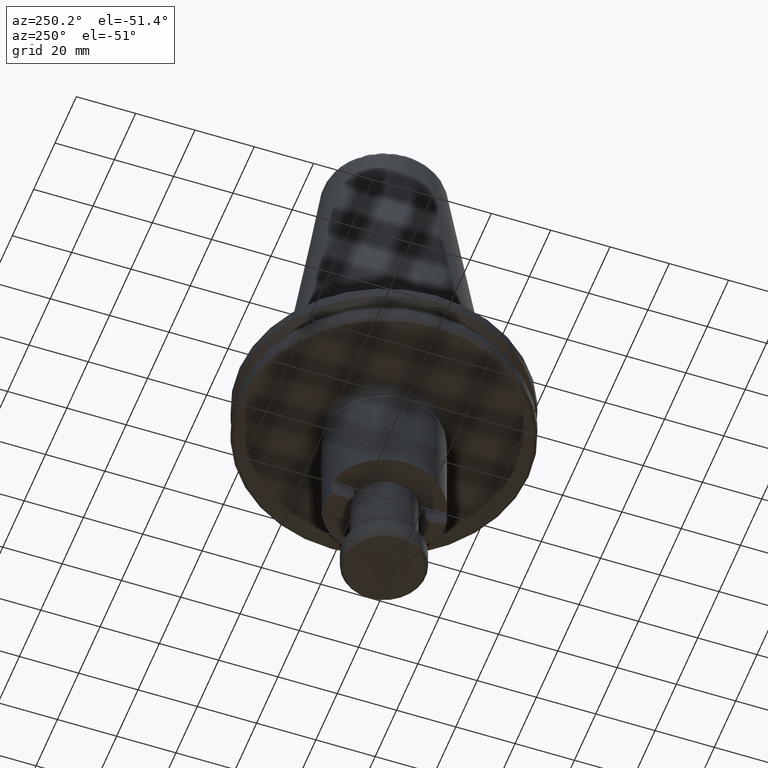
[diagram: clean part render]
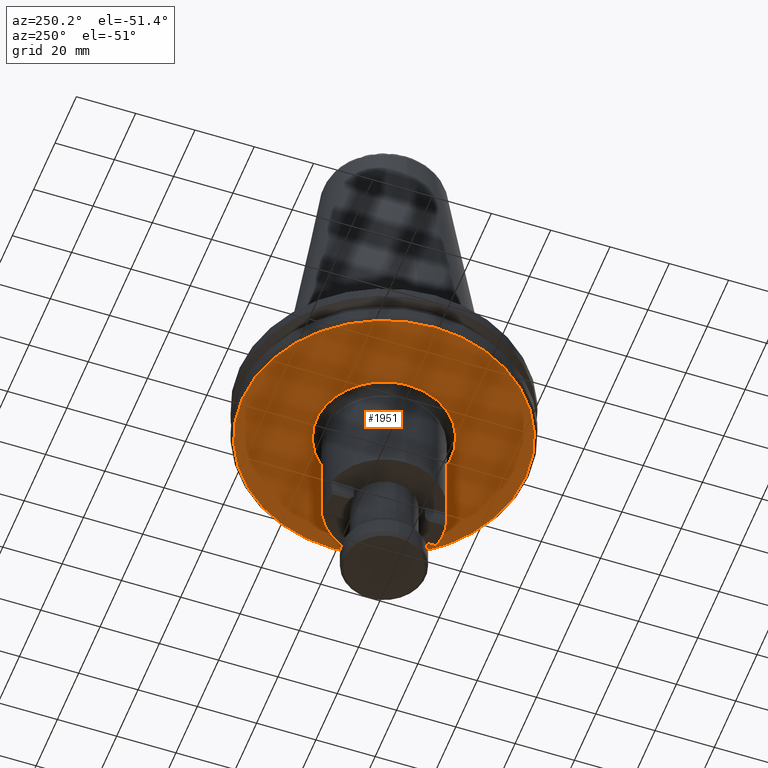
[diagram: same view with one face highlighted and labeled with its STEP entity id]
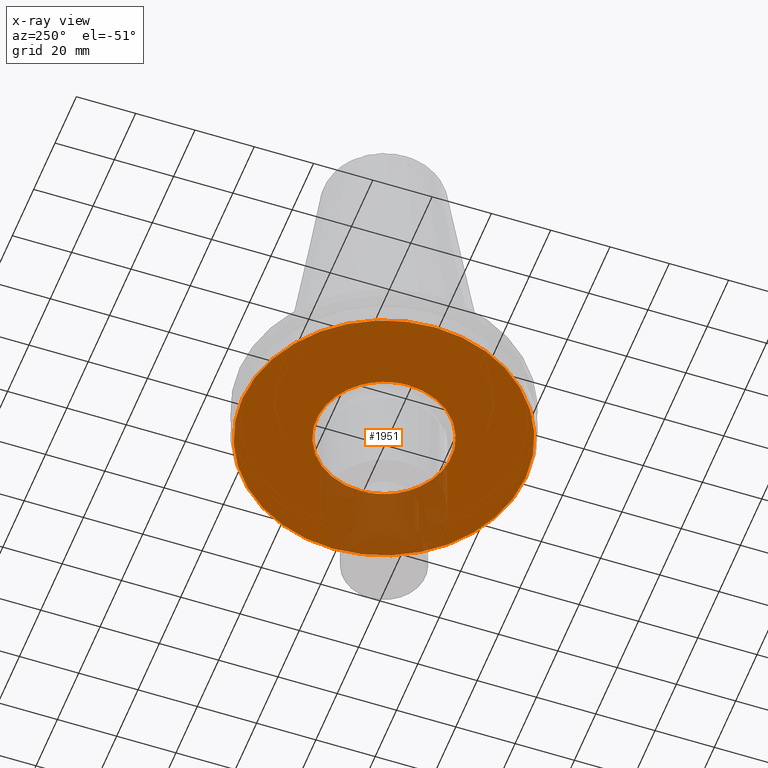
[diagram: x-ray of the same camera — body ghosted, the highlighted face saturated]
A machine part, auxiliary view. The second image highlights one B-rep face of the part: STEP entity #1951.
The next image is the same camera in x-ray: the body ghosted, the highlighted face saturated — about 18% of this face is hidden behind the body in this view.
In plain terms, the highlighted planar face has unit normal (0, 0, -1).
Its self-contained STEP definition (entity closure, byte-faithful):
#9 = CARTESIAN_POINT ( 'NONE',  ( 71.01151117430772800, 88.99750050050644700, 79.55142735088047300 ) ) ;
#18 = CARTESIAN_POINT ( 'NONE',  ( 70.82622866451565400, 89.25391066957321600, 79.55142735088050200 ) ) ;
#26 = CARTESIAN_POINT ( 'NONE',  ( 69.78205825713831700, 90.83301022154412900, 79.55142735088047300 ) ) ;
#39 = CARTESIAN_POINT ( 'NONE',  ( 112.2147490201321700, 103.6879148337303000, 79.55142735088047300 ) ) ;
#50 = CARTESIAN_POINT ( 'NONE',  ( 70.46531002369931700, 89.77253651307395900, 79.55142735088048800 ) ) ;
#65 = CARTESIAN_POINT ( 'NONE',  ( 68.94067503758111600, 92.44217391056717800, 79.55142735088045900 ) ) ;
#79 = CARTESIAN_POINT ( 'NONE',  ( 69.26256048306584000, 91.78179686560780200, 79.55142735088050200 ) ) ;
#81 = CARTESIAN_POINT ( 'NONE',  ( 100.2173177748814500, 122.5150694197451700, 79.55142735088048800 ) ) ;
#86 = CARTESIAN_POINT ( 'NONE',  ( 68.93677107463057000, 92.45019845855414100, 79.55142735088045900 ) ) ;
#87 = CARTESIAN_POINT ( 'NONE',  ( 100.2651320323611100, 122.4893477631587000, 79.55142735088047300 ) ) ;
#93 = CARTESIAN_POINT ( 'NONE',  ( 68.92793382342996700, 92.46838973952806400, 79.55142735088045900 ) ) ;
#105 = CARTESIAN_POINT ( 'NONE',  ( 73.92729103833346500, 85.71172258562654600, 79.55142735088048800 ) ) ;
#107 = CARTESIAN_POINT ( 'NONE',  ( 111.3380267558167800, 108.7725781759253900, 79.55142735088047300 ) ) ;
#115 = CARTESIAN_POINT ( 'NONE',  ( 68.91469674215569800, 92.49568374713032900, 79.55142735088048800 ) ) ;
#121 = CARTESIAN_POINT ( 'NONE',  ( 68.88394178786855100, 92.55941936785886500, 79.55142735088045900 ) ) ;
#127 = CARTESIAN_POINT ( 'NONE',  ( 68.82295815403918500, 92.68708902127558200, 79.55142735088047300 ) ) ;
#133 = CARTESIAN_POINT ( 'NONE',  ( 68.70309598536020700, 92.94322197594755200, 79.55142735088047300 ) ) ;
#138 = CARTESIAN_POINT ( 'NONE',  ( 68.47179204392088500, 93.45866247664574200, 79.55142735088045900 ) ) ;
#151 = CARTESIAN_POINT ( 'NONE',  ( 68.04286574471726100, 94.50224184345900400, 79.55142735088047300 ) ) ;
#159 = CARTESIAN_POINT ( 'NONE',  ( 67.73295448884260800, 95.41850707001356100, 79.55142735088048800 ) ) ;
#162 = CARTESIAN_POINT ( 'NONE',  ( 94.24463053340581100, 80.13268542799252700, 79.55142735088047300 ) ) ;
#163 = CARTESIAN_POINT ( 'NONE',  ( 109.9653215429587900, 112.3503672510434700, 79.55142735088048800 ) ) ;
#166 = CARTESIAN_POINT ( 'NONE',  ( 67.54918187290213900, 96.04872109992292900, 79.55142735088045900 ) ) ;
#173 = CARTESIAN_POINT ( 'NONE',  ( 67.54699258694988400, 96.05624760426063300, 79.55142735088047300 ) ) ;
#181 = CARTESIAN_POINT ( 'NONE',  ( 109.0979600279792500, 114.0130407766119700, 79.55142735088047300 ) ) ;
#185 = CARTESIAN_POINT ( 'NONE',  ( 67.54199152929993500, 96.07347282224509400, 79.55142735088047300 ) ) ;
#192 = CARTESIAN_POINT ( 'NONE',  ( 67.53450544214163600, 96.09931376240841400, 79.55142735088048800 ) ) ;
#201 = CARTESIAN_POINT ( 'NONE',  ( 67.51714640065637200, 96.15963108176272600, 79.55142735088047300 ) ) ;
#202 = CARTESIAN_POINT ( 'NONE',  ( 94.64885851386372900, 80.22542573633110400, 79.55142735088047300 ) ) ;
#215 = CARTESIAN_POINT ( 'NONE',  ( 67.48286229855435200, 96.28035288969742600, 79.55142735088047300 ) ) ;
#226 = CARTESIAN_POINT ( 'NONE',  ( 67.41603001782493700, 96.52214518247114900, 79.55142735088048800 ) ) ;
#233 = CARTESIAN_POINT ( 'NONE',  ( 67.28930915026438700, 97.00712447563563500, 79.55142735088048800 ) ) ;
#239 = CARTESIAN_POINT ( 'NONE',  ( 67.06364219073705600, 97.98266189243325600, 79.55142735088051600 ) ) ;
#241 = CARTESIAN_POINT ( 'NONE',  ( 99.45342188564889300, 81.93721089698466600, 79.55142735088048800 ) ) ;
#255 = CARTESIAN_POINT ( 'NONE',  ( 66.91782726930264900, 98.82840053049169200, 79.55142735088047300 ) ) ;
#262 = CARTESIAN_POINT ( 'NONE',  ( 66.83940254878291400, 99.41422921095357900, 79.55142735088044500 ) ) ;
#264 = CARTESIAN_POINT ( 'NONE',  ( 112.0933936793501700, 105.0098769722517200, 79.55142735088045900 ) ) ;
#272 = CARTESIAN_POINT ( 'NONE',  ( 66.83759331347620500, 99.42786775085463100, 79.55142735088047300 ) ) ;
#292 = CARTESIAN_POINT ( 'NONE',  ( 66.83345679917489700, 99.45926187874070500, 79.55142735088047300 ) ) ;
#306 = CARTESIAN_POINT ( 'NONE',  ( 66.82730125541081600, 99.50635627429846900, 79.55142735088047300 ) ) ;
#309 = CARTESIAN_POINT ( 'NONE',  ( 100.8341943064203000, 122.1739322660339200, 79.55142735088047300 ) ) ;
#310 = CARTESIAN_POINT ( 'NONE',  ( 137.1900091425559700, 102.4230254990840100, 79.55142735088108500 ) ) ;
#319 = CARTESIAN_POINT ( 'NONE',  ( 66.81328291377620600, 99.61626562336724100, 79.55142735088048800 ) ) ;
#320 = CIRCLE ( 'NONE', #2406, 47.74999999999747800 ) ;
#330 = CARTESIAN_POINT ( 'NONE',  ( 66.78662460576676100, 99.83617402590726900, 79.55142735088047300 ) ) ;
#332 = CARTESIAN_POINT ( 'NONE',  ( 66.73882149078723100, 100.2763496485972300, 79.55142735088048800 ) ) ;
#343 = CARTESIAN_POINT ( 'NONE',  ( 66.66526926498485800, 101.1581361644169300, 79.55142735088050200 ) ) ;
#358 = CARTESIAN_POINT ( 'NONE',  ( 66.64003136428013400, 101.9164136415875800, 79.55142735088045900 ) ) ;
#394 = CARTESIAN_POINT ( 'NONE',  ( 111.3330256981669500, 108.7898033939087800, 79.55142735088048800 ) ) ;
#402 = CARTESIAN_POINT ( 'NONE',  ( 109.9432472104857400, 112.3958525396153900, 79.55142735088047300 ) ) ;
#408 = CARTESIAN_POINT ( 'NONE',  ( 66.64000914794310400, 102.4230254990840100, 79.55142735095384400 ) ) ;
#441 = CARTESIAN_POINT ( 'NONE',  ( 94.99654466114591900, 80.31040384643723900, 79.55142735088047300 ) ) ;
#468 = CARTESIAN_POINT ( 'NONE',  ( 78.54324747734583000, 82.39540423949981100, 79.55142735088047300 ) ) ;
#481 = CARTESIAN_POINT ( 'NONE',  ( 112.0527170297061600, 105.3396947238672100, 79.55142735088048800 ) ) ;
#504 = CARTESIAN_POINT ( 'NONE',  ( 74.41056661524304200, 85.27786991127027200, 79.55142735088047300 ) ) ;
#513 = CARTESIAN_POINT ( 'NONE',  ( 90.38946753721511100, 79.62295809031540700, 79.55142735088048800 ) ) ;
#525 = CARTESIAN_POINT ( 'NONE',  ( 95.27525629801985500, 124.4637430902561300, 79.55142735088045900 ) ) ;
#546 = EDGE_CURVE ( 'NONE', #2693, #750, #668, .T. ) ;
#547 = CARTESIAN_POINT ( 'NONE',  ( 71.18643734254170900, 88.76113749206663800, 79.55142735088045900 ) ) ;
#549 = CARTESIAN_POINT ( 'NONE',  ( 78.37666861032431600, 82.48653622062609300, 79.55142735088045900 ) ) ;
#550 = CARTESIAN_POINT ( 'NONE',  ( 66.64000914794310400, 102.4230254990840100, 79.55142735095384400 ) ) ;
#569 = DIRECTION ( 'NONE',  ( 1.000000000000000000, 0.0000000000000000000, 0.0000000000000000000 ) ) ;
#619 = CARTESIAN_POINT ( 'NONE',  ( 107.7274350831099400, 116.0395881701616200, 79.55142735088047300 ) ) ;
#633 = B_SPLINE_CURVE_WITH_KNOTS ( 'NONE', 3,
 ( #2264, #1323, #39, #1559, #264, #1787, #481, #2010, #706, #2240, #1340, #2880, #910, #1733, #1122, #892, #2842, #107, #394, #2871, #2381, #801, #1940, #1462, #2713, #2619, #163, #2038, #402, #2823, #2490, #181, #1037, #2054, #2107, #2546, #619, #1449, #1860, #2852, #2140, #1866, #2417, #1914, #1896, #2499, #1361, #951, #2516, #2064, #1605, #1835, #309, #1154, #754, #87, #81, #2511, #2275, #2734, #2744, #1172, #2525, #525, #2885, #2882, #2866, #2872, #2853, #2843, #2833, #2825, #2812, #2764, #2760, #2746, #2735, #2724, #2719, #2714, #2707, #2700, #2692, #2694, #2679, #2687, #2664, #2658, #2653, #2649, #2646, #2601, #2578, #2536, #2526, #2494, #2484, #2455, #2476, #2467, #2451, #2446, #2442, #2436, #2431, #2419, #2409, #2383, #2398, #2366, #2354, #2305, #2297, #2286, #2257, #2265, #2249, #2242, #2235, #2231, #2226, #2221, #2215, #2211, #2207, #2198, #2185, #2194, #2156, #2168, #2146, #2129, #2121, #2079, #2066, #2055 ),
 .UNSPECIFIED., .F., .F.,
 ( 4, 1, 1, 1, 1, 1, 2, 2, 1, 1, 1, 1, 1, 1, 2, 2, 1, 1, 1, 1, 1, 1, 2, 2, 1, 1, 1, 1, 1, 1, 2, 2, 1, 1, 1, 1, 1, 2, 2, 1, 1, 1, 1, 1, 2, 2, 1, 1, 1, 1, 2, 2, 2, 1, 1, 1, 1, 2, 2, 1, 1, 1, 1, 1, 2, 2, 1, 1, 1, 1, 1, 2, 2, 1, 1, 1, 1, 1, 1, 2, 2, 1, 1, 1, 1, 1, 1, 2, 2, 1, 1, 1, 1, 1, 1, 2, 2, 1, 1, 1, 1, 1, 2, 2, 4 ),
 ( 0.0000000000000000000, 0.03125000000000267800, 0.04687500000000401800, 0.05468750000000507200, 0.05859375000000516900, 0.06054687500000521800, 0.06152343750000566900, 0.06250000000000612000, 0.09375000000001870700, 0.1093750000000249200, 0.1171875000000276600, 0.1210937500000287500, 0.1230468750000292000, 0.1240234375000293200, 0.1245117187500290200, 0.1250000000000287300, 0.1562500000000352800, 0.1718750000000386600, 0.1796875000000403600, 0.1835937500000413600, 0.1855468750000416900, 0.1865234375000423000, 0.1870117187500423000, 0.1875000000000423300, 0.2187500000000396100, 0.2343750000000382500, 0.2421875000000375500, 0.2460937500000369700, 0.2480468750000368600, 0.2490234375000370500, 0.2495117187500369400, 0.2500000000000368600, 0.2812500000000401300, 0.2968750000000419700, 0.3046875000000430800, 0.3085937500000436300, 0.3105468750000436900, 0.3115234375000439100, 0.3125000000000441300, 0.3437500000000479100, 0.3593750000000497900, 0.3671875000000510700, 0.3710937500000519600, 0.3730468750000521800, 0.3740234375000521200, 0.3750000000000521200, 0.4062500000000518500, 0.4218750000000518500, 0.4296875000000516300, 0.4335937500000514600, 0.4355468750000513500, 0.4375000000000512900, 0.5000000000000390800, 0.5312500000000332000, 0.5468750000000300900, 0.5546875000000285300, 0.5585937500000275300, 0.5605468750000272000, 0.5625000000000267600, 0.5937500000000224300, 0.6093750000000202100, 0.6171875000000191000, 0.6210937500000184300, 0.6230468750000182100, 0.6240234375000179900, 0.6250000000000176500, 0.6562500000000154300, 0.6718750000000142100, 0.6796875000000136600, 0.6835937500000134300, 0.6855468750000131000, 0.6865234375000132100, 0.6875000000000133200, 0.7187500000000129900, 0.7343750000000128800, 0.7421875000000126600, 0.7460937500000127700, 0.7480468750000129900, 0.7490234375000127700, 0.7495117187500126600, 0.7500000000000124300, 0.7812499999999872300, 0.7968749999999749100, 0.8046874999999691400, 0.8085937499999658100, 0.8105468749999642500, 0.8115234374999630300, 0.8120117187499622500, 0.8124999999999613600, 0.8437499999999374900, 0.8593749999999259500, 0.8671874999999201700, 0.8710937499999174000, 0.8730468749999160700, 0.8740234374999158500, 0.8745117187499157300, 0.8749999999999156200, 0.9062499999999347200, 0.9218749999999438200, 0.9296874999999480400, 0.9335937499999502600, 0.9355468749999517100, 0.9365234374999523700, 0.9374999999999530400, 1.000000000000000000 ),
 .UNSPECIFIED. ) ;
#658 = CARTESIAN_POINT ( 'NONE',  ( 89.44000914255849500, 102.4230254990840100, 79.55142735088108500 ) ) ;
#664 = CARTESIAN_POINT ( 'NONE',  ( 71.17288707348979000, 88.77926244295522900, 79.55142735088048800 ) ) ;
#668 = B_SPLINE_CURVE_WITH_KNOTS ( 'NONE', 3,
 ( #408, #358, #343, #332, #330, #319, #306, #292, #272, #262, #255, #239, #233, #226, #215, #201, #192, #185, #173, #166, #159, #151, #138, #133, #127, #121, #115, #93, #86, #65, #79, #26, #50, #18, #9, #1859, #1542, #664, #547, #1126, #2573, #2238, #865, #105, #2471, #2138, #2851, #504, #2388, #1069, #1962, #2523, #2364, #549, #468, #2396, #2508, #980, #1805, #2472, #2053, #1255, #2821, #2284, #1423, #1058, #1273, #1128, #513, #1929, #852, #162, #202, #2762, #2239, #441, #885, #2181, #1143, #241, #1231, #1646, #768, #2884, #2861, #2856, #2845, #2841, #2832, #2811, #2804, #2798, #2789, #2774, #2757, #2743, #2732, #2722, #2711, #2698, #2691, #2684, #2669, #2657, #2648, #2638, #2618, #2624, #2611, #2608, #2604, #2599, #2591, #2583, #2567, #2558, #2577, #2545, #2540, #2535, #2515, #2497, #2489, #2481, #2459, #2450, #2445, #2435, #2416, #2424, #2407, #2412, #2403, #2380, #2371, #2352 ),
 .UNSPECIFIED., .F., .F.,
 ( 4, 1, 1, 1, 1, 1, 2, 2, 1, 1, 1, 1, 1, 1, 2, 2, 1, 1, 1, 1, 1, 1, 2, 2, 1, 1, 1, 1, 1, 1, 2, 2, 1, 1, 1, 1, 1, 2, 2, 1, 1, 1, 1, 1, 2, 2, 1, 1, 1, 1, 2, 2, 2, 1, 1, 1, 1, 2, 2, 1, 1, 1, 1, 1, 2, 2, 1, 1, 1, 1, 1, 2, 2, 1, 1, 1, 1, 1, 1, 2, 2, 1, 1, 1, 1, 1, 1, 2, 2, 1, 1, 1, 1, 1, 1, 2, 2, 1, 1, 1, 1, 1, 2, 2, 4 ),
 ( 0.0000000000000000000, 0.03124999999997651900, 0.04687499999996477800, 0.05468749999995895000, 0.05859374999995645800, 0.06054687499995473100, 0.06152343749995387700, 0.06249999999995301700, 0.09374999999994281000, 0.1093749999999377000, 0.1171874999999350700, 0.1210937499999336400, 0.1230468749999331900, 0.1240234374999328600, 0.1245117187499322200, 0.1249999999999315800, 0.1562499999999019700, 0.1718749999998873700, 0.1796874999998799300, 0.1835937499998765400, 0.1855468749998748200, 0.1865234374998739600, 0.1870117187498739900, 0.1874999999998740200, 0.2187499999998767900, 0.2343749999998783500, 0.2421874999998791000, 0.2460937499998799300, 0.2480468749998803200, 0.2490234374998805700, 0.2495117187498807100, 0.2499999999998808200, 0.2812499999998908700, 0.2968749999998958600, 0.3046874999998988000, 0.3085937499999004700, 0.3105468749999012500, 0.3115234374999014700, 0.3124999999999016900, 0.3437499999999081300, 0.3593749999999116800, 0.3671874999999132900, 0.3710937499999139600, 0.3730468749999145100, 0.3740234374999149000, 0.3749999999999152900, 0.4062499999999292200, 0.4218749999999360500, 0.4296874999999394400, 0.4335937499999410500, 0.4355468749999415500, 0.4374999999999421000, 0.4999999999999650300, 0.5312499999999766900, 0.5468749999999826800, 0.5546874999999853500, 0.5585937499999866800, 0.5605468749999873400, 0.5624999999999880100, 0.5937499999999927800, 0.6093749999999954500, 0.6171874999999964500, 0.6210937499999967800, 0.6230468749999971100, 0.6240234374999973400, 0.6249999999999974500, 0.6562499999999961100, 0.6718749999999955600, 0.6796874999999954500, 0.6835937499999955600, 0.6855468749999953400, 0.6865234374999952300, 0.6874999999999950000, 0.7187499999999917800, 0.7343749999999906700, 0.7421874999999902300, 0.7460937499999897900, 0.7480468749999895600, 0.7490234374999896700, 0.7495117187499895600, 0.7499999999999895600, 0.7812499999999941200, 0.7968749999999968900, 0.8046874999999983300, 0.8085937499999990000, 0.8105468749999996700, 0.8115234375000002200, 0.8120117187500005600, 0.8125000000000010000, 0.8437500000000031100, 0.8593750000000043300, 0.8671875000000048800, 0.8710937500000048800, 0.8730468750000046600, 0.8740234375000050000, 0.8745117187500047700, 0.8750000000000046600, 0.9062500000000158800, 0.9218750000000216500, 0.9296875000000240900, 0.9335937500000252000, 0.9355468750000262000, 0.9365234375000264200, 0.9375000000000265300, 1.000000000000000000 ),
 .UNSPECIFIED. ) ;
#697 = CIRCLE ( 'NONE', #1570, 47.74999999999747800 ) ;
#706 = CARTESIAN_POINT ( 'NONE',  ( 112.0424249716407700, 105.4181832473128400, 79.55142735088047300 ) ) ;
#750 = VERTEX_POINT ( 'NONE', #1297 ) ;
#754 = CARTESIAN_POINT ( 'NONE',  ( 100.3367708077787800, 122.4506467586634100, 79.55142735088047300 ) ) ;
#768 = CARTESIAN_POINT ( 'NONE',  ( 100.0676561381170900, 82.25141760175067400, 79.55142735088047300 ) ) ;
#801 = CARTESIAN_POINT ( 'NONE',  ( 110.8371525403569700, 110.3438091548064400, 79.55142735088044500 ) ) ;
#852 = CARTESIAN_POINT ( 'NONE',  ( 93.43386559306813400, 79.96639856309428800, 79.55142735088047300 ) ) ;
#865 = CARTESIAN_POINT ( 'NONE',  ( 73.41985051313433500, 86.19088977977902700, 79.55142735088045900 ) ) ;
#870 = DIRECTION ( 'NONE',  ( -1.000000000000000000, 0.0000000000000000000, -0.0000000000000000000 ) ) ;
#874 = DIRECTION ( 'NONE',  ( 0.0000000000000000000, 0.0000000000000000000, -1.000000000000000000 ) ) ;
#885 = CARTESIAN_POINT ( 'NONE',  ( 95.94467160840926600, 80.55112580980409100, 79.55142735088048800 ) ) ;
#892 = CARTESIAN_POINT ( 'NONE',  ( 111.3628718844599200, 108.6864199164129400, 79.55142735088047300 ) ) ;
#910 = CARTESIAN_POINT ( 'NONE',  ( 111.5907091348487900, 107.8389265225782900, 79.55142735088047300 ) ) ;
#916 = CARTESIAN_POINT ( 'NONE',  ( 137.5953354925585200, 56.26135246708398800, 79.55142735088047300 ) ) ;
#927 = PLANE ( 'NONE',  #2864 ) ;
#951 = CARTESIAN_POINT ( 'NONE',  ( 104.4694516698759100, 119.5681810868954100, 79.55142735088048800 ) ) ;
#975 = EDGE_CURVE ( 'NONE', #2196, #2592, #697, .T. ) ;
#980 = CARTESIAN_POINT ( 'NONE',  ( 78.68521106880328400, 82.31891989776504200, 79.55142735088047300 ) ) ;
#1037 = CARTESIAN_POINT ( 'NONE',  ( 108.4147082614181800, 115.0735144850850600, 79.55142735088047300 ) ) ;
#1058 = CARTESIAN_POINT ( 'NONE',  ( 83.77018646741170500, 80.33917512866034400, 79.55142735088050200 ) ) ;
#1069 = CARTESIAN_POINT ( 'NONE',  ( 75.10222752381569900, 84.67410643959146900, 79.55142735088045900 ) ) ;
#1122 = CARTESIAN_POINT ( 'NONE',  ( 111.3971559865614000, 108.5656981084851900, 79.55142735088047300 ) ) ;
#1126 = CARTESIAN_POINT ( 'NONE',  ( 71.19251429372555200, 88.75301994013935300, 79.55142735088045900 ) ) ;
#1128 = CARTESIAN_POINT ( 'NONE',  ( 87.54109235323476000, 79.62316032066922800, 79.55142735088047300 ) ) ;
#1143 = CARTESIAN_POINT ( 'NONE',  ( 98.72878134387433100, 81.59170014286320300, 79.55142735088047300 ) ) ;
#1154 = CARTESIAN_POINT ( 'NONE',  ( 100.5033496748084000, 122.3595147775322300, 79.55142735088047300 ) ) ;
#1172 = CARTESIAN_POINT ( 'NONE',  ( 95.82956039122231600, 124.3116237566803500, 79.55142735088047300 ) ) ;
#1195 = CARTESIAN_POINT ( 'NONE',  ( 41.69000914256101700, 102.4230254990840100, 79.55142735088108500 ) ) ;
#1200 = EDGE_LOOP ( 'NONE', ( #1259, #2848 ) ) ;
#1231 = CARTESIAN_POINT ( 'NONE',  ( 99.81250158622556500, 82.11846257042407200, 79.55142735088047300 ) ) ;
#1255 = CARTESIAN_POINT ( 'NONE',  ( 83.05045789384365700, 80.53442724151707900, 79.55142735088047300 ) ) ;
#1259 = ORIENTED_EDGE ( 'NONE', *, *, #546, .T. ) ;
#1273 = CARTESIAN_POINT ( 'NONE',  ( 85.66818091249301400, 79.85700662659556300, 79.55142735088050200 ) ) ;
#1297 = CARTESIAN_POINT ( 'NONE',  ( 112.2400091371738900, 102.4230254990840100, 79.55142735095384400 ) ) ;
#1305 = DIRECTION ( 'NONE',  ( 1.000000000000000000, 0.0000000000000000000, 0.0000000000000000000 ) ) ;
#1323 = CARTESIAN_POINT ( 'NONE',  ( 112.2399869208368800, 102.9296373565685200, 79.55142735088047300 ) ) ;
#1340 = CARTESIAN_POINT ( 'NONE',  ( 111.9621910158114700, 106.0176504677112900, 79.55142735088047300 ) ) ;
#1361 = CARTESIAN_POINT ( 'NONE',  ( 104.5070229961280400, 119.5351715291437700, 79.55142735088045900 ) ) ;
#1423 = CARTESIAN_POINT ( 'NONE',  ( 83.71611309940087200, 80.35313361796697500, 79.55142735088048800 ) ) ;
#1449 = CARTESIAN_POINT ( 'NONE',  ( 107.7071312116274700, 116.0667885552121000, 79.55142735088047300 ) ) ;
#1461 = FACE_OUTER_BOUND ( 'NONE', #1986, .T. ) ;
#1462 = CARTESIAN_POINT ( 'NONE',  ( 110.1769222997381900, 111.9028290222629400, 79.55142735088047300 ) ) ;
#1510 = DIRECTION ( 'NONE',  ( -0.0000000000000000000, -0.0000000000000000000, 1.000000000000000000 ) ) ;
#1542 = CARTESIAN_POINT ( 'NONE',  ( 71.15258320200733500, 88.80646282800546500, 79.55142735088048800 ) ) ;
#1545 = EDGE_CURVE ( 'NONE', #2592, #2196, #320, .T. ) ;
#1559 = CARTESIAN_POINT ( 'NONE',  ( 112.1411967943297600, 104.5697013495551900, 79.55142735088045900 ) ) ;
#1570 = AXIS2_PLACEMENT_3D ( 'NONE', #2621, #1510, #569 ) ;
#1605 = CARTESIAN_POINT ( 'NONE',  ( 102.7544952275687300, 120.9675178184395700, 79.55142735088047300 ) ) ;
#1646 = CARTESIAN_POINT ( 'NONE',  ( 99.99123129393626600, 82.21121248123847600, 79.55142735088047300 ) ) ;
#1651 = ORIENTED_EDGE ( 'NONE', *, *, #975, .F. ) ;
#1695 = EDGE_CURVE ( 'NONE', #750, #2693, #633, .T. ) ;
#1733 = CARTESIAN_POINT ( 'NONE',  ( 111.4639882672898600, 108.3239058157237900, 79.55142735088047300 ) ) ;
#1787 = CARTESIAN_POINT ( 'NONE',  ( 112.0667353713408300, 105.2297853747960500, 79.55142735088048800 ) ) ;
#1805 = CARTESIAN_POINT ( 'NONE',  ( 79.52295928931695800, 81.87205183944995200, 79.55142735088045900 ) ) ;
#1835 = CARTESIAN_POINT ( 'NONE',  ( 101.4866311598551500, 121.7894930460938100, 79.55142735088048800 ) ) ;
#1859 = CARTESIAN_POINT ( 'NONE',  ( 71.10535822654976800, 88.87002110414394500, 79.55142735088047300 ) ) ;
#1860 = CARTESIAN_POINT ( 'NONE',  ( 107.6935809425755100, 116.0849135061009200, 79.55142735088047300 ) ) ;
#1866 = CARTESIAN_POINT ( 'NONE',  ( 106.4345585483347600, 117.6596630794685900, 79.55142735088047300 ) ) ;
#1896 = CARTESIAN_POINT ( 'NONE',  ( 104.6939456999350000, 119.3692665407830900, 79.55142735088048800 ) ) ;
#1914 = CARTESIAN_POINT ( 'NONE',  ( 104.9527272468112900, 119.1343284125098400, 79.55142735088048800 ) ) ;
#1929 = CARTESIAN_POINT ( 'NONE',  ( 91.80309979470510500, 79.71059984041396300, 79.55142735088047300 ) ) ;
#1940 = CARTESIAN_POINT ( 'NONE',  ( 110.4082262411640700, 111.3873885215951800, 79.55142735088047300 ) ) ;
#1951 = ADVANCED_FACE ( 'NONE', ( #2070, #1461 ), #927, .T. ) ;
#1962 = CARTESIAN_POINT ( 'NONE',  ( 76.12552305761889200, 83.87853317968534800, 79.55142735088047300 ) ) ;
#1986 = EDGE_LOOP ( 'NONE', ( #1651, #2737 ) ) ;
#2010 = CARTESIAN_POINT ( 'NONE',  ( 112.0465614859420600, 105.3867891194260400, 79.55142735088047300 ) ) ;
#2038 = CARTESIAN_POINT ( 'NONE',  ( 109.9520844616856200, 112.3776612586431900, 79.55142735088047300 ) ) ;
#2053 = CARTESIAN_POINT ( 'NONE',  ( 82.28207125506492000, 80.76686352072519500, 79.55142735088047300 ) ) ;
#2054 = CARTESIAN_POINT ( 'NONE',  ( 108.0537896206017600, 115.5921403285894200, 79.55142735088047300 ) ) ;
#2055 = CARTESIAN_POINT ( 'NONE',  ( 66.64000914794310400, 102.4230254990840100, 79.55142735095384400 ) ) ;
#2064 = CARTESIAN_POINT ( 'NONE',  ( 103.7777907613416100, 120.1719445585520000, 79.55142735088044500 ) ) ;
#2066 = CARTESIAN_POINT ( 'NONE',  ( 66.64005363040263300, 103.4372938787043400, 79.55142735088047300 ) ) ;
#2070 = FACE_BOUND ( 'NONE', #1200, .T. ) ;
#2079 = CARTESIAN_POINT ( 'NONE',  ( 66.70731026624778800, 104.4461434361665900, 79.55142735088047300 ) ) ;
#2107 = CARTESIAN_POINT ( 'NONE',  ( 107.8685071108095300, 115.8485504976585600, 79.55142735088047300 ) ) ;
#2121 = CARTESIAN_POINT ( 'NONE',  ( 66.84388013029683900, 105.4652527767099000, 79.55142735088047300 ) ) ;
#2129 = CARTESIAN_POINT ( 'NONE',  ( 66.84656609331878500, 105.4851378505647100, 79.55142735088047300 ) ) ;
#2138 = CARTESIAN_POINT ( 'NONE',  ( 74.31672867969427900, 85.36047676044334800, 79.55142735088048800 ) ) ;
#2140 = CARTESIAN_POINT ( 'NONE',  ( 107.2003387437947900, 116.7426696738434500, 79.55142735088047300 ) ) ;
#2146 = CARTESIAN_POINT ( 'NONE',  ( 66.85141481287853100, 105.5206875872704000, 79.55142735088045900 ) ) ;
#2156 = CARTESIAN_POINT ( 'NONE',  ( 66.87629578830949100, 105.6982921994538300, 79.55142735088047300 ) ) ;
#2168 = CARTESIAN_POINT ( 'NONE',  ( 66.85874957392455500, 105.5739982499407700, 79.55142735088047300 ) ) ;
#2181 = CARTESIAN_POINT ( 'NONE',  ( 97.25357569784056000, 80.96864900565003600, 79.55142735088047300 ) ) ;
#2185 = CARTESIAN_POINT ( 'NONE',  ( 66.99366268905967600, 106.4413231884386200, 79.55142735088047300 ) ) ;
#2194 = CARTESIAN_POINT ( 'NONE',  ( 66.91311530485666000, 105.9464897116095400, 79.55142735088048800 ) ) ;
#2196 = VERTEX_POINT ( 'NONE', #310 ) ;
#2198 = CARTESIAN_POINT ( 'NONE',  ( 67.18239086190111200, 107.4247439521679000, 79.55142735088045900 ) ) ;
#2207 = CARTESIAN_POINT ( 'NONE',  ( 67.39152941765426900, 108.2569682812006400, 79.55142735088047300 ) ) ;
#2211 = CARTESIAN_POINT ( 'NONE',  ( 67.55451663963947300, 108.8156201427287600, 79.55142735088050200 ) ) ;
#2215 = CARTESIAN_POINT ( 'NONE',  ( 67.55768158021317000, 108.8264444339003200, 79.55142735088050200 ) ) ;
#2221 = CARTESIAN_POINT ( 'NONE',  ( 67.56337267522347600, 108.8458559288796200, 79.55142735088051600 ) ) ;
#2226 = CARTESIAN_POINT ( 'NONE',  ( 67.57192797645257100, 108.8749657311327900, 79.55142735088047300 ) ) ;
#2231 = CARTESIAN_POINT ( 'NONE',  ( 67.59202095698360300, 108.9428365215462500, 79.55142735088048800 ) ) ;
#2235 = CARTESIAN_POINT ( 'NONE',  ( 67.63272936203087200, 109.0783697763311300, 79.55142735088047300 ) ) ;
#2238 = CARTESIAN_POINT ( 'NONE',  ( 72.44545973684606100, 87.18638791862650800, 79.55142735088047300 ) ) ;
#2239 = CARTESIAN_POINT ( 'NONE',  ( 94.93712549216498100, 80.29555326348065600, 79.55142735088047300 ) ) ;
#2240 = CARTESIAN_POINT ( 'NONE',  ( 112.0406157363341500, 105.4318217872135100, 79.55142735088045900 ) ) ;
#2242 = CARTESIAN_POINT ( 'NONE',  ( 67.71623594806614200, 109.3486029817321700, 79.55142735088047300 ) ) ;
#2249 = CARTESIAN_POINT ( 'NONE',  ( 67.89160822389965200, 109.8857361758597300, 79.55142735088047300 ) ) ;
#2257 = CARTESIAN_POINT ( 'NONE',  ( 68.66240673075277800, 111.8331849444110400, 79.55142735088047300 ) ) ;
#2264 = CARTESIAN_POINT ( 'NONE',  ( 112.2400091371738900, 102.4230254990840100, 79.55142735095384400 ) ) ;
#2265 = CARTESIAN_POINT ( 'NONE',  ( 68.27578919061875200, 110.9466696974165700, 79.55142735088048800 ) ) ;
#2275 = CARTESIAN_POINT ( 'NONE',  ( 99.35705899573429200, 122.9739991587563800, 79.55142735088050200 ) ) ;
#2284 = CARTESIAN_POINT ( 'NONE',  ( 83.60476198708006700, 80.38230790792133000, 79.55142735088047300 ) ) ;
#2286 = CARTESIAN_POINT ( 'NONE',  ( 68.95005243996114100, 112.4231125436660400, 79.55142735088045900 ) ) ;
#2297 = CARTESIAN_POINT ( 'NONE',  ( 68.95555536950976700, 112.4343793943642300, 79.55142735088048800 ) ) ;
#2305 = CARTESIAN_POINT ( 'NONE',  ( 68.96550495089542200, 112.4547087698491300, 79.55142735088045900 ) ) ;
#2352 = CARTESIAN_POINT ( 'NONE',  ( 112.2400091371738900, 102.4230254990840100, 79.55142735095384400 ) ) ;
#2354 = CARTESIAN_POINT ( 'NONE',  ( 68.98045065620783600, 112.4851895486438500, 79.55142735088047300 ) ) ;
#2364 = CARTESIAN_POINT ( 'NONE',  ( 78.04582397872695800, 82.67211873211559200, 79.55142735088048800 ) ) ;
#2366 = CARTESIAN_POINT ( 'NONE',  ( 69.01547330124076000, 112.5562183748032400, 79.55142735088047300 ) ) ;
#2371 = CARTESIAN_POINT ( 'NONE',  ( 112.2399646547143600, 101.4087571195086600, 79.55142735088048800 ) ) ;
#2380 = CARTESIAN_POINT ( 'NONE',  ( 112.1727080188691600, 100.3999075620460000, 79.55142735088048800 ) ) ;
#2381 = CARTESIAN_POINT ( 'NONE',  ( 111.1470637962499200, 109.4275439282103000, 79.55142735088051600 ) ) ;
#2383 = CARTESIAN_POINT ( 'NONE',  ( 69.22979048528196700, 112.9797875829661100, 79.55142735088051600 ) ) ;
#2388 = CARTESIAN_POINT ( 'NONE',  ( 74.42779084649893700, 85.26278196046932600, 79.55142735088047300 ) ) ;
#2396 = CARTESIAN_POINT ( 'NONE',  ( 78.61488625275991600, 82.35670323500681900, 79.55142735088047300 ) ) ;
#2398 = CARTESIAN_POINT ( 'NONE',  ( 69.08611592185569400, 112.6979040630085800, 79.55142735088048800 ) ) ;
#2403 = CARTESIAN_POINT ( 'NONE',  ( 112.0361381548200100, 99.38079822145626000, 79.55142735088048800 ) ) ;
#2406 = AXIS2_PLACEMENT_3D ( 'NONE', #658, #2805, #1305 ) ;
#2407 = CARTESIAN_POINT ( 'NONE',  ( 112.0286034722393000, 99.32536341090114700, 79.55142735088045900 ) ) ;
#2409 = CARTESIAN_POINT ( 'NONE',  ( 69.52669690092005800, 113.5376031970678500, 79.55142735088047300 ) ) ;
#2412 = CARTESIAN_POINT ( 'NONE',  ( 112.0334521917985700, 99.36091314760456300, 79.55142735088047300 ) ) ;
#2416 = CARTESIAN_POINT ( 'NONE',  ( 112.0037224968108500, 99.14775879872888700, 79.55142735088047300 ) ) ;
#2417 = CARTESIAN_POINT ( 'NONE',  ( 105.4601677720303600, 118.6551612183344100, 79.55142735088048800 ) ) ;
#2419 = CARTESIAN_POINT ( 'NONE',  ( 70.15873888733858600, 114.6294287220189600, 79.55142735088047300 ) ) ;
#2424 = CARTESIAN_POINT ( 'NONE',  ( 112.0212687111941000, 99.27205274823430200, 79.55142735088048800 ) ) ;
#2431 = CARTESIAN_POINT ( 'NONE',  ( 70.76602485594132500, 115.5244693949727400, 79.55142735088047300 ) ) ;
#2435 = CARTESIAN_POINT ( 'NONE',  ( 111.9669029802667900, 98.89956128658694500, 79.55142735088045900 ) ) ;
#2436 = CARTESIAN_POINT ( 'NONE',  ( 71.20679014818577500, 116.1120654373874400, 79.55142735088047300 ) ) ;
#2442 = CARTESIAN_POINT ( 'NONE',  ( 71.21502867099320600, 116.1230315020119400, 79.55142735088045900 ) ) ;
#2445 = CARTESIAN_POINT ( 'NONE',  ( 111.8863555960683600, 98.40472780977887600, 79.55142735088047300 ) ) ;
#2446 = CARTESIAN_POINT ( 'NONE',  ( 71.23007053101334000, 116.1430164842722800, 79.55142735088050200 ) ) ;
#2450 = CARTESIAN_POINT ( 'NONE',  ( 111.6976274232305900, 97.42130704606623200, 79.55142735088047300 ) ) ;
#2451 = CARTESIAN_POINT ( 'NONE',  ( 71.25265565376020000, 116.1729729361843800, 79.55142735088045900 ) ) ;
#2455 = CARTESIAN_POINT ( 'NONE',  ( 71.62701750753635100, 116.6571113885595700, 79.55142735088047300 ) ) ;
#2459 = CARTESIAN_POINT ( 'NONE',  ( 111.4884888674707900, 96.58908271700400400, 79.55142735088048800 ) ) ;
#2467 = CARTESIAN_POINT ( 'NONE',  ( 71.30551060251939100, 116.2427241736310600, 79.55142735088048800 ) ) ;
#2471 = CARTESIAN_POINT ( 'NONE',  ( 74.18607258519671200, 85.47678445736809700, 79.55142735088048800 ) ) ;
#2472 = CARTESIAN_POINT ( 'NONE',  ( 80.77186873142783000, 81.29945507800792400, 79.55142735088047300 ) ) ;
#2476 = CARTESIAN_POINT ( 'NONE',  ( 71.41184581610372100, 116.3816380471313000, 79.55142735088047300 ) ) ;
#2481 = CARTESIAN_POINT ( 'NONE',  ( 111.3255016454766900, 96.03043085543620800, 79.55142735088050200 ) ) ;
#2484 = CARTESIAN_POINT ( 'NONE',  ( 72.06736594745760300, 117.1986404491273200, 79.55142735088048800 ) ) ;
#2489 = CARTESIAN_POINT ( 'NONE',  ( 111.3223367049037200, 96.01960656426668100, 79.55142735088048800 ) ) ;
#2490 = CARTESIAN_POINT ( 'NONE',  ( 109.6174578020515500, 113.0642541325533200, 79.55142735088047300 ) ) ;
#2494 = CARTESIAN_POINT ( 'NONE',  ( 72.98808305552374500, 118.2440280811069600, 79.55142735088047300 ) ) ;
#2497 = CARTESIAN_POINT ( 'NONE',  ( 111.3166456098939100, 96.00019506928883600, 79.55142735088047300 ) ) ;
#2499 = CARTESIAN_POINT ( 'NONE',  ( 104.5632896054301400, 119.4855742377161500, 79.55142735088047300 ) ) ;
#2508 = CARTESIAN_POINT ( 'NONE',  ( 78.66270051023705900, 82.33098157842184200, 79.55142735088050200 ) ) ;
#2511 = CARTESIAN_POINT ( 'NONE',  ( 100.1948072163147100, 122.5271311004023000, 79.55142735088047300 ) ) ;
#2515 = CARTESIAN_POINT ( 'NONE',  ( 111.3080903086655600, 95.97108526703796400, 79.55142735088050200 ) ) ;
#2516 = CARTESIAN_POINT ( 'NONE',  ( 104.4522274386165000, 119.5832690376997200, 79.55142735088047300 ) ) ;
#2523 = CARTESIAN_POINT ( 'NONE',  ( 77.39338712531451800, 83.05655795204209800, 79.55142735088047300 ) ) ;
#2525 = CARTESIAN_POINT ( 'NONE',  ( 95.44204572761576300, 124.4193770214126100, 79.55142735088047300 ) ) ;
#2526 = CARTESIAN_POINT ( 'NONE',  ( 73.84587525367817300, 119.0754966413940500, 79.55142735088050200 ) ) ;
#2535 = CARTESIAN_POINT ( 'NONE',  ( 111.2879973281363100, 95.90321447662948600, 79.55142735088050200 ) ) ;
#2536 = CARTESIAN_POINT ( 'NONE',  ( 74.46705185494225500, 119.6175330351119600, 79.55142735088048800 ) ) ;
#2540 = CARTESIAN_POINT ( 'NONE',  ( 111.2472889230923800, 95.76768122185416100, 79.55142735088047300 ) ) ;
#2545 = CARTESIAN_POINT ( 'NONE',  ( 111.1637823370632000, 95.49744801647032900, 79.55142735088047300 ) ) ;
#2546 = CARTESIAN_POINT ( 'NONE',  ( 107.7746600585674900, 115.9760298940223700, 79.55142735088050200 ) ) ;
#2558 = CARTESIAN_POINT ( 'NONE',  ( 110.6042290945271700, 93.89938130083331200, 79.55142735088048800 ) ) ;
#2567 = CARTESIAN_POINT ( 'NONE',  ( 110.2176115543798900, 93.01286605380212800, 79.55142735088048800 ) ) ;
#2573 = CARTESIAN_POINT ( 'NONE',  ( 71.67967954135880900, 88.10338132428276500, 79.55142735088050200 ) ) ;
#2577 = CARTESIAN_POINT ( 'NONE',  ( 110.9884100612389800, 94.96031482236915600, 79.55142735088047300 ) ) ;
#2578 = CARTESIAN_POINT ( 'NONE',  ( 74.48918446891139000, 119.6367824145703800, 79.55142735088050200 ) ) ;
#2583 = CARTESIAN_POINT ( 'NONE',  ( 109.9299658451537900, 92.42293845449756900, 79.55142735088047300 ) ) ;
#2591 = CARTESIAN_POINT ( 'NONE',  ( 109.9244629156063700, 92.41167160380162200, 79.55142735088044500 ) ) ;
#2592 = VERTEX_POINT ( 'NONE', #1195 ) ;
#2599 = CARTESIAN_POINT ( 'NONE',  ( 109.9145133342216400, 92.39134222831813800, 79.55142735088047300 ) ) ;
#2601 = CARTESIAN_POINT ( 'NONE',  ( 74.53022195948841500, 119.6723377473868100, 79.55142735088048800 ) ) ;
#2604 = CARTESIAN_POINT ( 'NONE',  ( 109.8995676289105700, 92.36086144952557200, 79.55142735088048800 ) ) ;
#2608 = CARTESIAN_POINT ( 'NONE',  ( 109.8645449838807900, 92.28983262337106900, 79.55142735088048800 ) ) ;
#2611 = CARTESIAN_POINT ( 'NONE',  ( 109.7939023632717100, 92.14814693517490700, 79.55142735088047300 ) ) ;
#2618 = CARTESIAN_POINT ( 'NONE',  ( 109.3533213842341400, 91.30844780115764100, 79.55142735088047300 ) ) ;
#2619 = CARTESIAN_POINT ( 'NONE',  ( 109.9960764972433900, 112.2866316303207700, 79.55142735088047300 ) ) ;
#2621 = CARTESIAN_POINT ( 'NONE',  ( 89.44000914255849500, 102.4230254990840100, 79.55142735088108500 ) ) ;
#2624 = CARTESIAN_POINT ( 'NONE',  ( 109.6502277998560500, 91.86626341523398800, 79.55142735088047300 ) ) ;
#2638 = CARTESIAN_POINT ( 'NONE',  ( 108.7212793978283400, 90.21662227622675800, 79.55142735088047300 ) ) ;
#2646 = CARTESIAN_POINT ( 'NONE',  ( 74.59185953859027100, 119.7255513547053200, 79.55142735088047300 ) ) ;
#2648 = CARTESIAN_POINT ( 'NONE',  ( 108.1139934292026800, 89.32158160323776000, 79.55142735088048800 ) ) ;
#2649 = CARTESIAN_POINT ( 'NONE',  ( 74.73624995914855200, 119.8488806951057500, 79.55142735088047300 ) ) ;
#2653 = CARTESIAN_POINT ( 'NONE',  ( 75.02730841088090600, 120.0921964025350500, 79.55142735088048800 ) ) ;
#2657 = CARTESIAN_POINT ( 'NONE',  ( 107.6732281369275200, 88.73398556077553700, 79.55142735088048800 ) ) ;
#2658 = CARTESIAN_POINT ( 'NONE',  ( 75.61853575680871100, 120.5654559239073400, 79.55142735088047300 ) ) ;
#2664 = CARTESIAN_POINT ( 'NONE',  ( 76.83743221851686700, 121.4584873927073500, 79.55142735088048800 ) ) ;
#2669 = CARTESIAN_POINT ( 'NONE',  ( 107.6649896141198900, 88.72301949615059900, 79.55142735088045900 ) ) ;
#2679 = CARTESIAN_POINT ( 'NONE',  ( 78.73453253973082200, 122.5534357630679100, 79.55142735088047300 ) ) ;
#2684 = CARTESIAN_POINT ( 'NONE',  ( 107.6499477540990300, 88.70303451388919300, 79.55142735088047300 ) ) ;
#2687 = CARTESIAN_POINT ( 'NONE',  ( 77.94467221972819000, 122.1322499534878400, 79.55142735088047300 ) ) ;
#2691 = CARTESIAN_POINT ( 'NONE',  ( 107.6273626313511900, 88.67307806197543100, 79.55142735088048800 ) ) ;
#2692 = CARTESIAN_POINT ( 'NONE',  ( 78.81236214699718800, 122.5946333964162800, 79.55142735088048800 ) ) ;
#2693 = VERTEX_POINT ( 'NONE', #550 ) ;
#2694 = CARTESIAN_POINT ( 'NONE',  ( 78.76145082909438600, 122.5677288363557300, 79.55142735088045900 ) ) ;
#2698 = CARTESIAN_POINT ( 'NONE',  ( 107.5745076825897300, 88.60332682452498400, 79.55142735088047300 ) ) ;
#2700 = CARTESIAN_POINT ( 'NONE',  ( 78.88878699117829300, 122.6348385169287800, 79.55142735088047300 ) ) ;
#2707 = CARTESIAN_POINT ( 'NONE',  ( 79.06751669888956300, 122.7275884277441100, 79.55142735088047300 ) ) ;
#2711 = CARTESIAN_POINT ( 'NONE',  ( 107.4681724690010300, 88.46441295101753600, 79.55142735088047300 ) ) ;
#2713 = CARTESIAN_POINT ( 'NONE',  ( 110.0570601310678900, 112.1589619769150100, 79.55142735088047300 ) ) ;
#2714 = CARTESIAN_POINT ( 'NONE',  ( 79.42659639946742800, 122.9088401011851500, 79.55142735088047300 ) ) ;
#2719 = CARTESIAN_POINT ( 'NONE',  ( 80.15123694124376600, 123.2543508553091700, 79.55142735088045900 ) ) ;
#2722 = CARTESIAN_POINT ( 'NONE',  ( 107.2530007775606400, 88.18893960957636600, 79.55142735088048800 ) ) ;
#2724 = CARTESIAN_POINT ( 'NONE',  ( 81.62644258727904400, 123.8774019925245300, 79.55142735088047300 ) ) ;
#2732 = CARTESIAN_POINT ( 'NONE',  ( 106.8126523376274400, 87.64741054898891500, 79.55142735088048800 ) ) ;
#2734 = CARTESIAN_POINT ( 'NONE',  ( 98.10814955357471900, 123.5465959202268500, 79.55142735088048800 ) ) ;
#2735 = CARTESIAN_POINT ( 'NONE',  ( 82.93534667670797900, 124.2949251883674600, 79.55142735088047300 ) ) ;
#2737 = ORIENTED_EDGE ( 'NONE', *, *, #1545, .F. ) ;
#2743 = CARTESIAN_POINT ( 'NONE',  ( 105.8919352295516800, 86.60202291699366100, 79.55142735088047300 ) ) ;
#2744 = CARTESIAN_POINT ( 'NONE',  ( 96.59794702996583700, 124.0791874774929800, 79.55142735088047300 ) ) ;
#2746 = CARTESIAN_POINT ( 'NONE',  ( 83.88347362396798700, 124.5356471517298000, 79.55142735088047300 ) ) ;
#2757 = CARTESIAN_POINT ( 'NONE',  ( 105.0341430314135600, 85.77055435673425200, 79.55142735088048800 ) ) ;
#2760 = CARTESIAN_POINT ( 'NONE',  ( 83.94289279294949300, 124.5504977346862900, 79.55142735088047300 ) ) ;
#2762 = CARTESIAN_POINT ( 'NONE',  ( 94.82185168626479300, 80.26722805616687100, 79.55142735088047300 ) ) ;
#2764 = CARTESIAN_POINT ( 'NONE',  ( 84.05816659884996500, 124.5788229419997300, 79.55142735088047300 ) ) ;
#2774 = CARTESIAN_POINT ( 'NONE',  ( 104.4129664301719900, 85.22851796305421600, 79.55142735088048800 ) ) ;
#2789 = CARTESIAN_POINT ( 'NONE',  ( 104.3908338161982400, 85.20926858359243300, 79.55142735088048800 ) ) ;
#2798 = CARTESIAN_POINT ( 'NONE',  ( 104.3497963256173600, 85.17371325077378700, 79.55142735088045900 ) ) ;
#2804 = CARTESIAN_POINT ( 'NONE',  ( 104.2881587465098400, 85.12049964345203500, 79.55142735088047300 ) ) ;
#2805 = DIRECTION ( 'NONE',  ( -0.0000000000000000000, -0.0000000000000000000, 1.000000000000000000 ) ) ;
#2811 = CARTESIAN_POINT ( 'NONE',  ( 104.1437683259390200, 84.99717030304449800, 79.55142735088048800 ) ) ;
#2812 = CARTESIAN_POINT ( 'NONE',  ( 84.23115977125145500, 124.6206252618350200, 79.55142735088047300 ) ) ;
#2821 = CARTESIAN_POINT ( 'NONE',  ( 83.43797255747313100, 80.42667397677129800, 79.55142735088047300 ) ) ;
#2823 = CARTESIAN_POINT ( 'NONE',  ( 109.9393432475360000, 112.4038770876007200, 79.55142735088045900 ) ) ;
#2825 = CARTESIAN_POINT ( 'NONE',  ( 84.63538775171034000, 124.7133655701725800, 79.55142735088048800 ) ) ;
#2832 = CARTESIAN_POINT ( 'NONE',  ( 103.8527098741842100, 84.75385459560246200, 79.55142735088047300 ) ) ;
#2833 = CARTESIAN_POINT ( 'NONE',  ( 85.44615269204958000, 124.8796524350692900, 79.55142735088047300 ) ) ;
#2841 = CARTESIAN_POINT ( 'NONE',  ( 103.2614825282218000, 84.28059507421049500, 79.55142735088045900 ) ) ;
#2842 = CARTESIAN_POINT ( 'NONE',  ( 111.3455128429749000, 108.7467372357636700, 79.55142735088047300 ) ) ;
#2843 = CARTESIAN_POINT ( 'NONE',  ( 87.07691849041386000, 125.1354511577485500, 79.55142735088047300 ) ) ;
#2845 = CARTESIAN_POINT ( 'NONE',  ( 102.0425860664860500, 83.38756360539507300, 79.55142735088047300 ) ) ;
#2848 = ORIENTED_EDGE ( 'NONE', *, *, #1695, .T. ) ;
#2851 = CARTESIAN_POINT ( 'NONE',  ( 74.37299528899313800, 85.31087946901939700, 79.55142735088048800 ) ) ;
#2852 = CARTESIAN_POINT ( 'NONE',  ( 107.6875039913910700, 116.0930310580290600, 79.55142735088047300 ) ) ;
#2853 = CARTESIAN_POINT ( 'NONE',  ( 88.49055074790209100, 125.2230929078495500, 79.55142735088048800 ) ) ;
#2856 = CARTESIAN_POINT ( 'NONE',  ( 100.9353460653222800, 82.71380104464205400, 79.55142735088050200 ) ) ;
#2861 = CARTESIAN_POINT ( 'NONE',  ( 100.1454857453849900, 82.29261523509956100, 79.55142735088047300 ) ) ;
#2864 = AXIS2_PLACEMENT_3D ( 'NONE', #916, #874, #870 ) ;
#2866 = CARTESIAN_POINT ( 'NONE',  ( 93.21183737242483900, 124.9890443715788400, 79.55142735088050200 ) ) ;
#2871 = CARTESIAN_POINT ( 'NONE',  ( 111.3308364122151600, 108.7973298982445400, 79.55142735088047300 ) ) ;
#2872 = CARTESIAN_POINT ( 'NONE',  ( 91.33892593187485400, 125.2228906775049800, 79.55142735088047300 ) ) ;
#2880 = CARTESIAN_POINT ( 'NONE',  ( 111.8163760943749300, 106.8633891057958000, 79.55142735088047300 ) ) ;
#2882 = CARTESIAN_POINT ( 'NONE',  ( 95.10983181770991700, 124.5068758695078800, 79.55142735088047300 ) ) ;
#2884 = CARTESIAN_POINT ( 'NONE',  ( 100.1185674560196600, 82.27832216181092000, 79.55142735088050200 ) ) ;
#2885 = CARTESIAN_POINT ( 'NONE',  ( 95.16390518570659700, 124.4929173802060400, 79.55142735088048800 ) ) ;